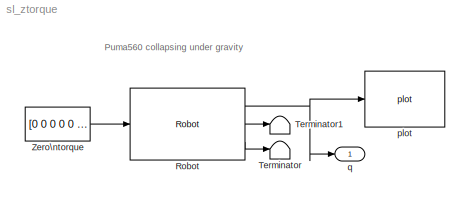
MODEL sl_ztorque
KIND model
BLOCK [Reference] Robot  REF=roblocks/Dynamics/Robot  (lib defined in mdl_2a292b13c81b, mdl_69400f8cfe22, +12 more)
  FunctionWithSeparateData = off
  GeneratePreprocessorConditionals = off
  Ports = [1, 3]
  RTWMemSecDataConstants = Inherit from model
  RTWMemSecDataInternal = Inherit from model
  RTWMemSecDataParameters = Inherit from model
  RTWMemSecFuncExecute = Inherit from model
  RTWMemSecFuncInitTerm = Inherit from model
  SID = 4
  ShowPortLabels = FromPortIcon
  SourceBlock = roblocks/Dynamics/Robot
  SystemSampleTime = -1
  q0 = [0 0 0 0 0 0]
  robot = p560
BLOCK [Terminator] Terminator
  SID = 5
BLOCK [Terminator] Terminator1
  SID = 9
BLOCK [Constant] Zero\ntorque
  SID = 7
  Value = [0 0 0 0 0 0]'
BLOCK [Reference] plot  REF=roblocks/Robot Graphics/plot  (lib defined in mdl_2a292b13c81b, mdl_69400f8cfe22, +12 more)
  FunctionWithSeparateData = off
  GeneratePreprocessorConditionals = off
  Ports = [1]
  RTWMemSecDataConstants = Inherit from model
  RTWMemSecDataInternal = Inherit from model
  RTWMemSecDataParameters = Inherit from model
  RTWMemSecFuncExecute = Inherit from model
  RTWMemSecFuncInitTerm = Inherit from model
  SID = 8
  ShowPortLabels = FromPortIcon
  SourceBlock = roblocks/Robot Graphics/plot
  SystemSampleTime = -1
  robot = p560
BLOCK [Outport] q
  IconDisplay = Port number
  SID = 10
ANNOTATION (root): Puma560 collapsing under gravity
NET Robot:1 -> plot:1, q:1
LINE Robot:2 -> Terminator1:1
LINE Robot:3 -> Terminator:1
LINE Zero\ntorque:1 -> Robot:1
note: NET lines group one-source signal fan-out (src -> all destinations, sorted); 1:1 wires keep LINE
